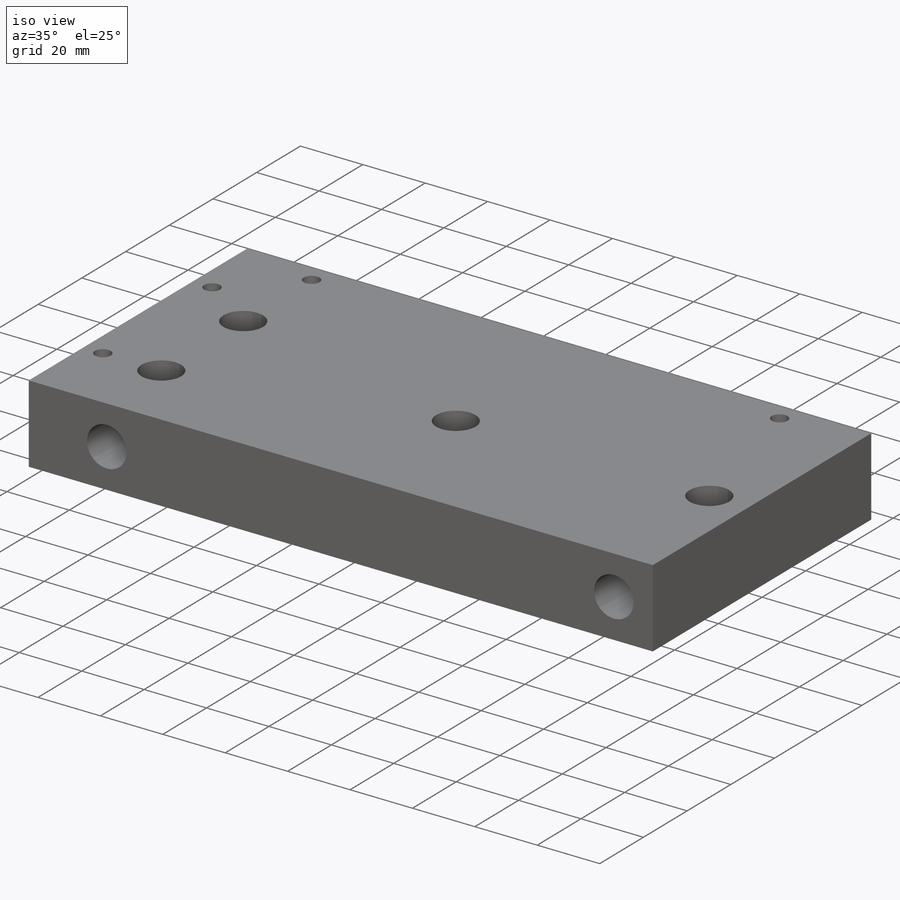
[diagram: iso view]
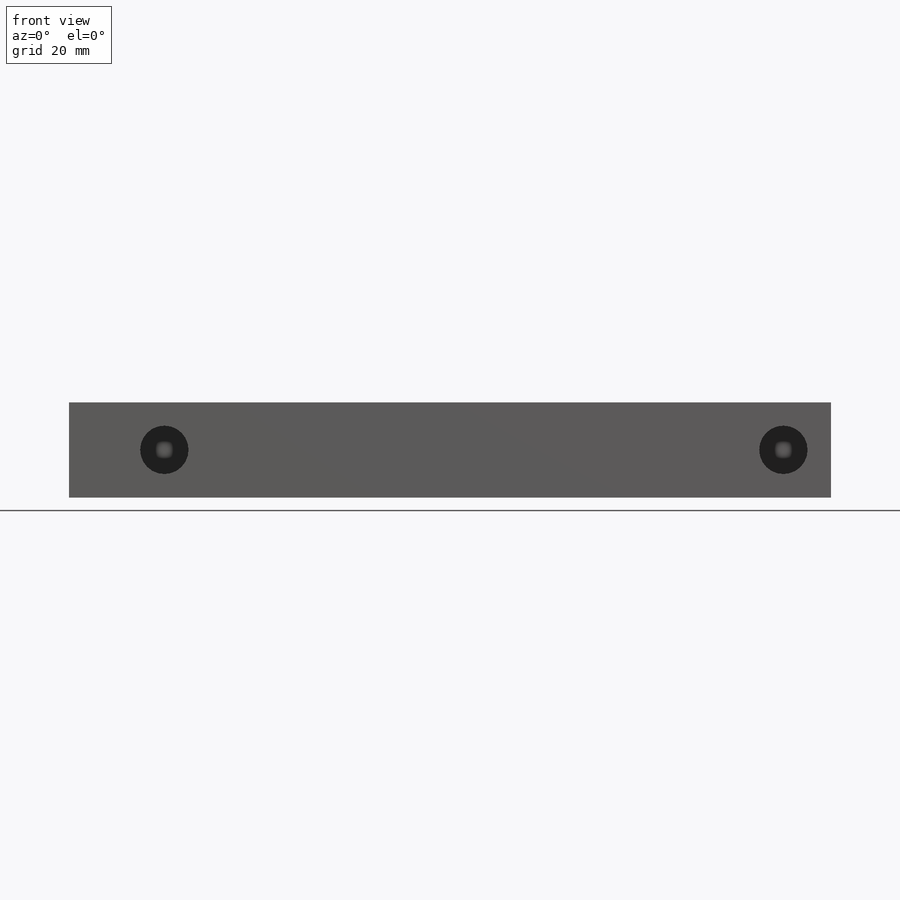
[diagram: front view]
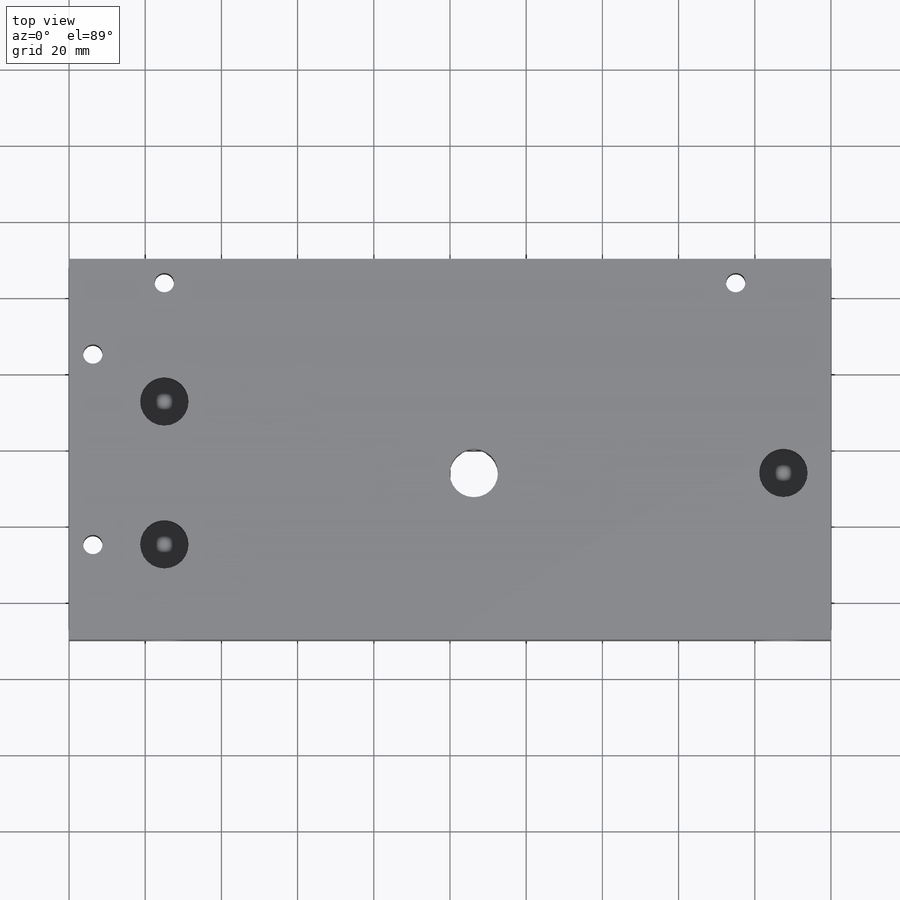
[diagram: top view]
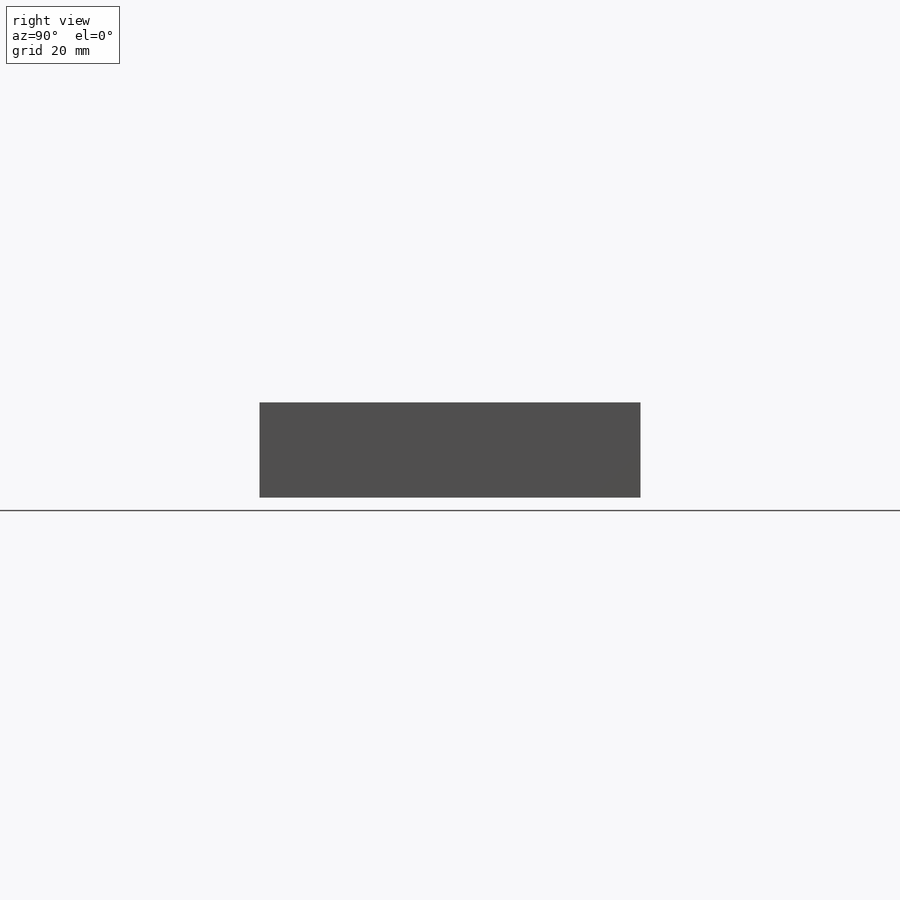
[diagram: right view]
SOLIDWORKS PART (.sldprt)
format: sldprt  version: not decoded by parser v0  size: 340,992 bytes
history: native  units: mm
features: sketch x9, cut_extrude x4, thread x4, material x1, extrude x1, hole x1 (+13 scaffold rows collapsed)
feature tree (33):
  scaffold x13  (default folders/planes/origin — collapsed)
  material  "Material <not specified>"
  sketch  "Sketch1"  dims[D1=200.0mm D2=100.0mm]
  extrude  "Boss-Extrude1"  Depth=25mm
  sketch  "Sketch2"  dims[D3=12.7mm D4=12.7mm D1=25.0mm D2=12.5mm]
  cut_extrude  "Cut-Extrude1"  Depth=87.5mm
  sketch  "Sketch3"  dims[c1.D7=12.7mm c1.D8=12.7mm c1.D9=12.7mm c1.D1=25.0mm c1.D2=12.5mm c1.D3=12.5mm c1.D4=12.5mm c2.D1=25.0mm c2.D5=25.0mm c2.D6=25.0mm]
  cut_extrude  "Cut-Extrude2"  Depth=19mm
  sketch  "Sketch4"  dims[D3=12.7mm D1=12.5mm D2=12.5mm]
  cut_extrude  "Cut-Extrude3"  [1 undecoded]
  sketch  "Sketch5"  dims[D3=3.175mm D1=6.35mm D2=25.4mm]
  cut_extrude  "Cut-Extrude4"  Depth=6.35mm
  sketch  "Sketch6"  dims[D1=12.5mm D2=12.5mm D3=6.25mm D4=6.25mm]
  sketch  "Sketch7"  dims[D1=25.0mm D2=25.0mm D3=25.0mm D4=25.0mm]
  hole  "1/4-20 Tapped Hole1"  Diameter=5.1054mm Depth=25mm
  sketch  "3DSketch1"
  sketch  "Sketch8"  dims[hole-wizard template sketch: 60 standard entries collapsed; hole parameters kept: c18.Thru Tap Drill Depth=25.0mm]
  thread  "Hole Thread1"  Diameter=6.35mm  [1 undecoded]
  thread  "Hole Thread2"  Diameter=6.35mm  [1 undecoded]
  thread  "Hole Thread3"  Diameter=6.35mm  [1 undecoded]
  thread  "Hole Thread4"  Diameter=6.35mm  [1 undecoded]
decode coverage: 17 of 19 modeling features carry decoded parameters
note: ~ marks probable driven/reference dimensions
note: 5 parameter values undecoded
note: suppression state not decoded; provenance and decode notes live in map.json
